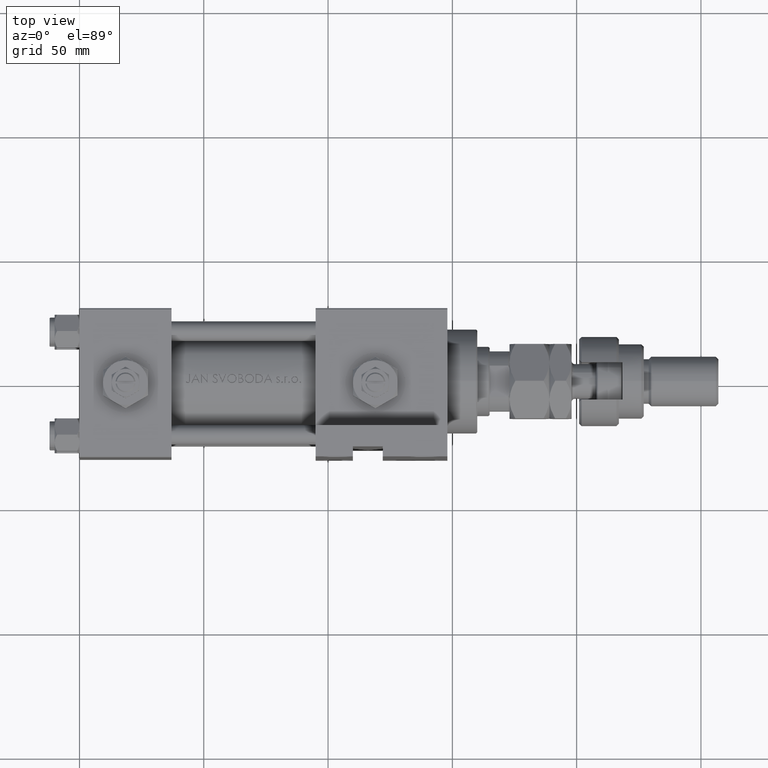
[diagram: clean part render]
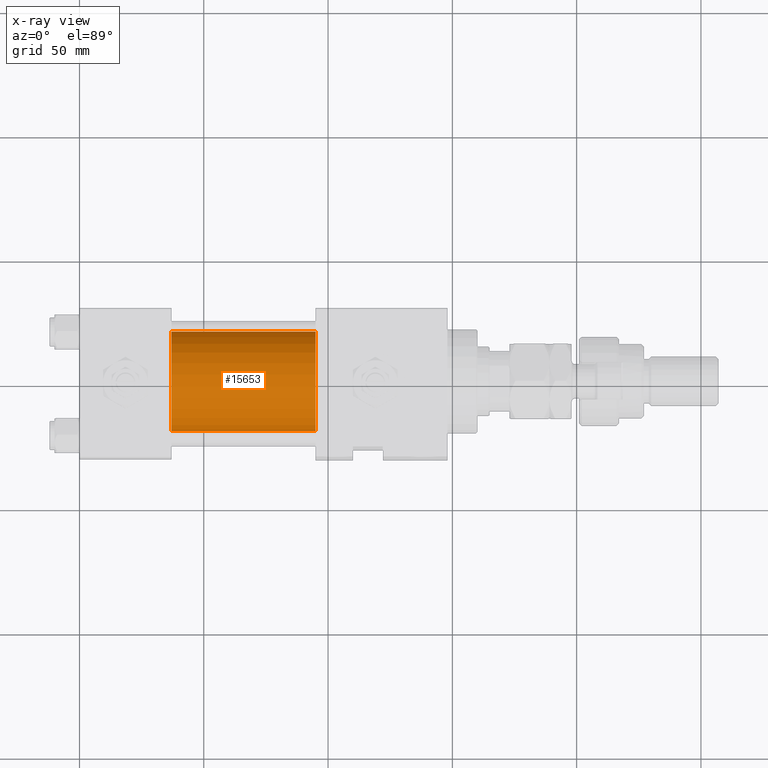
[diagram: x-ray — body ghosted, one internal face saturated and labeled with its STEP entity id]
A machine part, top view, then the same camera in x-ray: the body is ghosted and one INTERNAL B-rep face — a face not visible from any outside direction — is saturated and labeled: STEP entity #15653.
In plain terms, the highlighted cylindrical surface (partial cylindrical patch) has radius 20 mm, axis along (-1, -0, 0).
Its self-contained STEP definition (entity closure, byte-faithful):
#933 = EDGE_CURVE ( 'NONE', #11241, #44424, #50584, .T. ) ;
#2236 = CARTESIAN_POINT ( 'NONE',  ( 95.00000000000000000, -1.224646799147354686E-16, 1.000000000000000888 ) ) ;
#2589 = FACE_OUTER_BOUND ( 'NONE', #8450, .T. ) ;
#5403 = ORIENTED_EDGE ( 'NONE', *, *, #11735, .F. ) ;
#8450 = EDGE_LOOP ( 'NONE', ( #35460, #53552, #5403, #37394 ) ) ;
#9253 = EDGE_CURVE ( 'NONE', #40420, #21607, #49073, .T. ) ;
#11241 = VERTEX_POINT ( 'NONE', #13355 ) ;
#11735 = EDGE_CURVE ( 'NONE', #21607, #44424, #15880, .T. ) ;
#13355 = CARTESIAN_POINT ( 'NONE',  ( 95.00000000000000000, 2.326828918379970576E-15, -19.00000000000000000 ) ) ;
#15033 = AXIS2_PLACEMENT_3D ( 'NONE', #41170, #28162, #15678 ) ;
#15653 = ADVANCED_FACE ( 'NONE', ( #2589 ), #35428, .F. ) ;
#15678 = DIRECTION ( 'NONE',  ( 0.000000000000000000, 0.000000000000000000, -1.000000000000000000 ) ) ;
#15880 = CIRCLE ( 'NONE', #15033, 20.00000000000000000 ) ;
#17773 = DIRECTION ( 'NONE',  ( -1.000000000000000000, -0.000000000000000000, -0.000000000000000000 ) ) ;
#19497 = EDGE_CURVE ( 'NONE', #40420, #11241, #22371, .T. ) ;
#21607 = VERTEX_POINT ( 'NONE', #39639 ) ;
#22371 = CIRCLE ( 'NONE', #37972, 20.00000000000000000 ) ;
#23209 = DIRECTION ( 'NONE',  ( -1.000000000000000000, -0.000000000000000000, -0.000000000000000000 ) ) ;
#23251 = VECTOR ( 'NONE', #17773, 1000.000000000000000 ) ;
#27092 = VECTOR ( 'NONE', #40407, 1000.000000000000000 ) ;
#28162 = DIRECTION ( 'NONE',  ( 1.000000000000000000, 0.000000000000000000, 0.000000000000000000 ) ) ;
#32273 = CARTESIAN_POINT ( 'NONE',  ( 95.00000000000000000, -1.224646799147354686E-16, 21.00000000000000000 ) ) ;
#33782 = CARTESIAN_POINT ( 'NONE',  ( 95.00000000000000000, 2.326828918379970576E-15, -19.00000000000000000 ) ) ;
#35428 = CYLINDRICAL_SURFACE ( 'NONE', #50932, 20.00000000000000000 ) ;
#35460 = ORIENTED_EDGE ( 'NONE', *, *, #19497, .T. ) ;
#36671 = DIRECTION ( 'NONE',  ( 0.000000000000000000, 0.000000000000000000, -1.000000000000000000 ) ) ;
#37394 = ORIENTED_EDGE ( 'NONE', *, *, #9253, .F. ) ;
#37972 = AXIS2_PLACEMENT_3D ( 'NONE', #2236, #45067, #36671 ) ;
#39202 = CARTESIAN_POINT ( 'NONE',  ( 37.00000000000000000, 2.326828918379970576E-15, -19.00000000000000000 ) ) ;
#39639 = CARTESIAN_POINT ( 'NONE',  ( 37.00000000000000000, -1.224646799147354686E-16, 21.00000000000000000 ) ) ;
#40407 = DIRECTION ( 'NONE',  ( -1.000000000000000000, -0.000000000000000000, -0.000000000000000000 ) ) ;
#40420 = VERTEX_POINT ( 'NONE', #41372 ) ;
#41170 = CARTESIAN_POINT ( 'NONE',  ( 37.00000000000000000, -1.224646799147354686E-16, 1.000000000000000888 ) ) ;
#41372 = CARTESIAN_POINT ( 'NONE',  ( 95.00000000000000000, -1.224646799147354686E-16, 21.00000000000000000 ) ) ;
#44424 = VERTEX_POINT ( 'NONE', #39202 ) ;
#45067 = DIRECTION ( 'NONE',  ( 1.000000000000000000, 0.000000000000000000, 0.000000000000000000 ) ) ;
#49073 = LINE ( 'NONE', #32273, #27092 ) ;
#50584 = LINE ( 'NONE', #33782, #23251 ) ;
#50932 = AXIS2_PLACEMENT_3D ( 'NONE', #51687, #23209, #51950 ) ;
#51687 = CARTESIAN_POINT ( 'NONE',  ( 95.00000000000000000, -1.224646799147354686E-16, 1.000000000000000888 ) ) ;
#51950 = DIRECTION ( 'NONE',  ( 0.000000000000000000, 0.000000000000000000, 1.000000000000000000 ) ) ;
#53552 = ORIENTED_EDGE ( 'NONE', *, *, #933, .T. ) ;